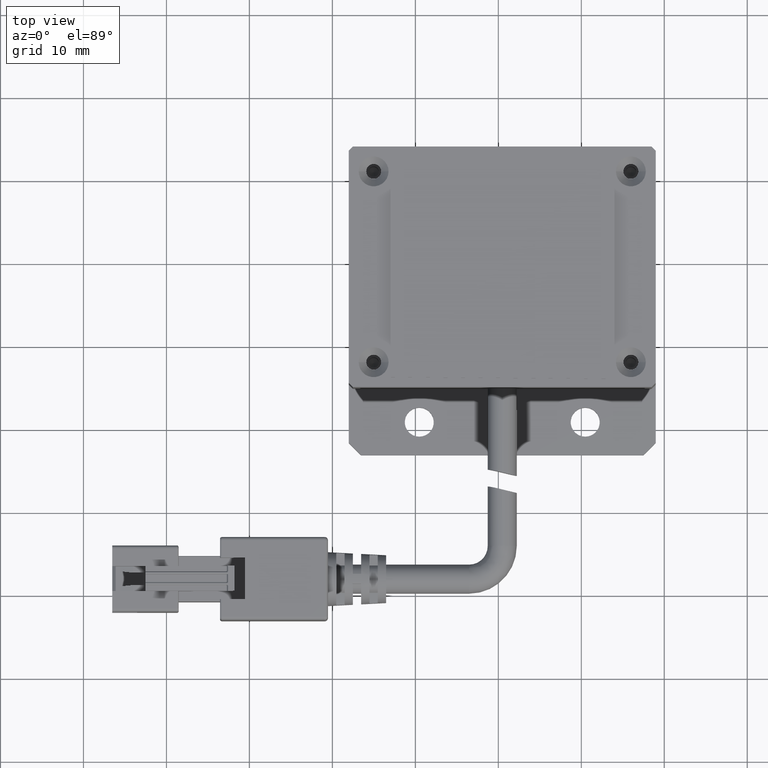
[diagram: clean part render]
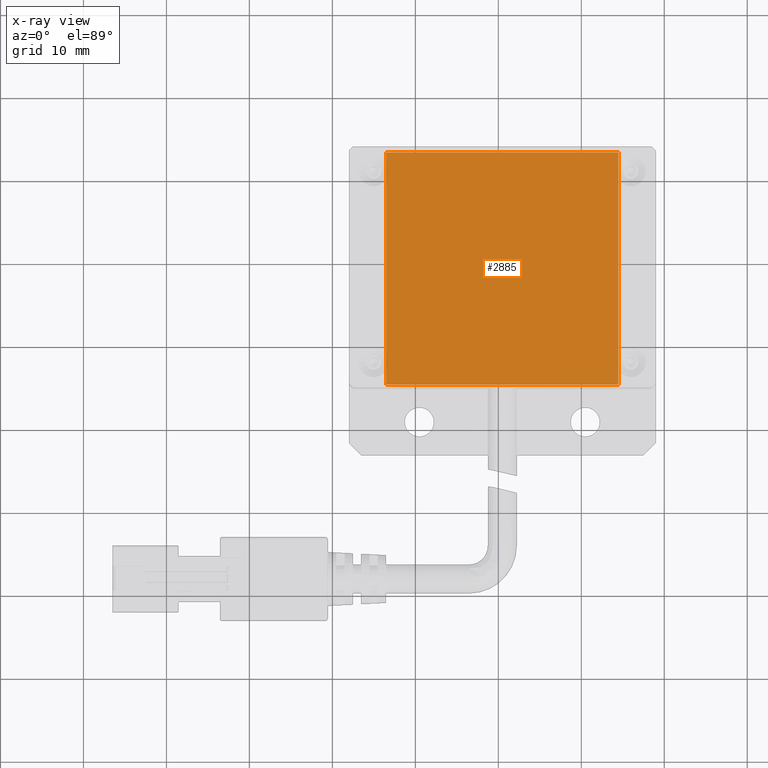
[diagram: x-ray — body ghosted, one internal face saturated and labeled with its STEP entity id]
A machine part, top view, then the same camera in x-ray: the body is ghosted and one INTERNAL B-rep face — a face not visible from any outside direction — is saturated and labeled: STEP entity #2885.
In plain terms, the highlighted planar face has unit normal (0, 0, 1).
Its self-contained STEP definition (entity closure, byte-faithful):
#875 = EDGE_CURVE ( 'NONE', #11467, #19970, #11709, .T. ) ;
#1227 = DIRECTION ( 'NONE',  ( 1.084202172485504600E-016, 1.000000000000000000, 0.0000000000000000000 ) ) ;
#1799 = AXIS2_PLACEMENT_3D ( 'NONE', #10079, #24430, #12164 ) ;
#2885 = ADVANCED_FACE ( 'NONE', ( #24310 ), #7919, .F. ) ;
#3239 = CARTESIAN_POINT ( 'NONE',  ( -13.52940053455518000, -0.5536464299350492000, 0.2999999999836304200 ) ) ;
#4600 = EDGE_CURVE ( 'NONE', #19867, #11467, #23458, .T. ) ;
#5742 = EDGE_LOOP ( 'NONE', ( #14507, #25889, #7143, #8861 ) ) ;
#7092 = VERTEX_POINT ( 'NONE', #15576 ) ;
#7143 = ORIENTED_EDGE ( 'NONE', *, *, #17129, .F. ) ;
#7606 = CARTESIAN_POINT ( 'NONE',  ( 0.4705994654448234500, 13.44635357006494700, 0.2999999999836304200 ) ) ;
#7721 = VECTOR ( 'NONE', #14485, 1000.000000000000000 ) ;
#7919 = PLANE ( 'NONE',  #1799 ) ;
#7929 = CARTESIAN_POINT ( 'NONE',  ( -13.52940053455517800, 13.44635357006494800, 0.2999999999836304200 ) ) ;
#8851 = VECTOR ( 'NONE', #1227, 1000.000000000000000 ) ;
#8861 = ORIENTED_EDGE ( 'NONE', *, *, #24106, .F. ) ;
#9039 = CARTESIAN_POINT ( 'NONE',  ( 14.47059946544482200, 13.44635357006494500, 0.2999999999836304200 ) ) ;
#10079 = CARTESIAN_POINT ( 'NONE',  ( 0.4705994654448219500, -0.5536464299350507500, 0.2999999999836304200 ) ) ;
#10328 = CARTESIAN_POINT ( 'NONE',  ( 0.4705994654448204000, -14.55364642993505500, 0.2999999999836304200 ) ) ;
#10955 = LINE ( 'NONE', #10328, #7721 ) ;
#11467 = VERTEX_POINT ( 'NONE', #7929 ) ;
#11709 = LINE ( 'NONE', #3239, #22592 ) ;
#12164 = DIRECTION ( 'NONE',  ( 1.000000000000000000, -1.084202172485504600E-016, 0.0000000000000000000 ) ) ;
#14485 = DIRECTION ( 'NONE',  ( 1.000000000000000000, -1.084202172485504600E-016, 0.0000000000000000000 ) ) ;
#14507 = ORIENTED_EDGE ( 'NONE', *, *, #875, .F. ) ;
#15576 = CARTESIAN_POINT ( 'NONE',  ( 14.47059946544482200, -14.55364642993505700, 0.2999999999836304200 ) ) ;
#17129 = EDGE_CURVE ( 'NONE', #7092, #19867, #25232, .T. ) ;
#17610 = CARTESIAN_POINT ( 'NONE',  ( -13.52940053455517800, -14.55364642993505300, 0.2999999999836304200 ) ) ;
#17625 = DIRECTION ( 'NONE',  ( -1.084202172485504600E-016, -1.000000000000000000, -0.0000000000000000000 ) ) ;
#19867 = VERTEX_POINT ( 'NONE', #9039 ) ;
#19970 = VERTEX_POINT ( 'NONE', #17610 ) ;
#20893 = VECTOR ( 'NONE', #26092, 1000.000000000000000 ) ;
#22592 = VECTOR ( 'NONE', #17625, 1000.000000000000000 ) ;
#23458 = LINE ( 'NONE', #7606, #20893 ) ;
#24106 = EDGE_CURVE ( 'NONE', #19970, #7092, #10955, .T. ) ;
#24310 = FACE_OUTER_BOUND ( 'NONE', #5742, .T. ) ;
#24430 = DIRECTION ( 'NONE',  ( 0.0000000000000000000, 0.0000000000000000000, 1.000000000000000000 ) ) ;
#25232 = LINE ( 'NONE', #25818, #8851 ) ;
#25818 = CARTESIAN_POINT ( 'NONE',  ( 14.47059946544482400, -0.5536464299350523100, 0.2999999999836304200 ) ) ;
#25889 = ORIENTED_EDGE ( 'NONE', *, *, #4600, .F. ) ;
#26092 = DIRECTION ( 'NONE',  ( -1.000000000000000000, 1.084202172485504600E-016, -0.0000000000000000000 ) ) ;